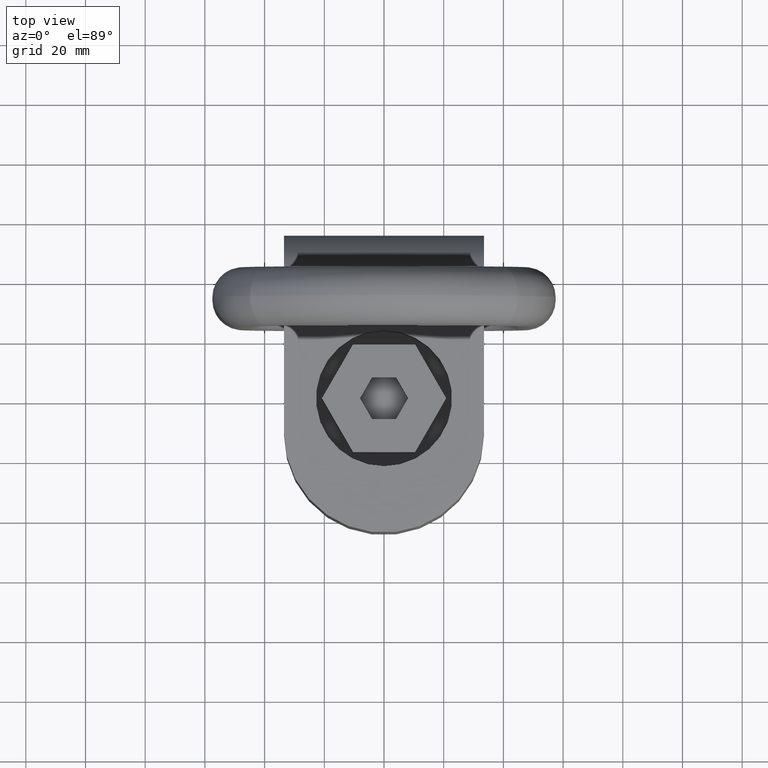
[diagram: clean part render]
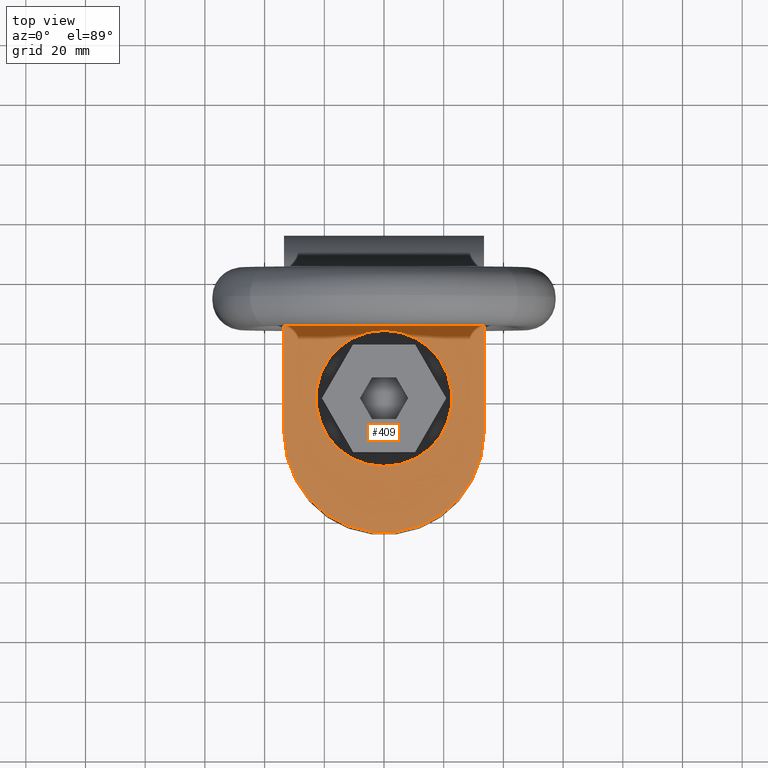
[diagram: same view with one face highlighted and labeled with its STEP entity id]
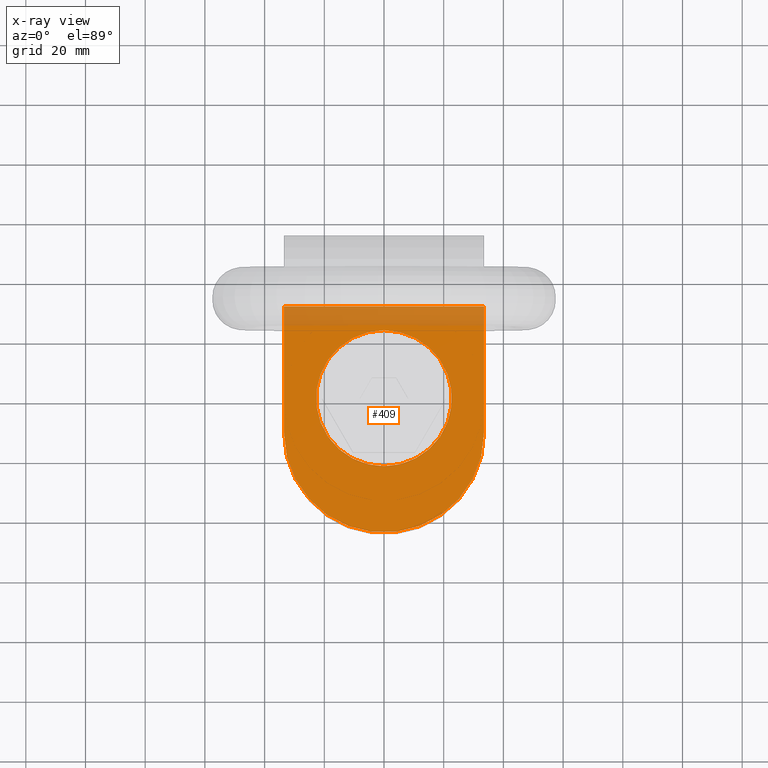
[diagram: x-ray of the same camera — body ghosted, the highlighted face saturated]
A machine part, top view. The second image highlights one B-rep face of the part: STEP entity #409.
The next image is the same camera in x-ray: the body ghosted, the highlighted face saturated — about 14% of this face is hidden behind the body in this view.
In plain terms, the highlighted planar face has unit normal (0, -0, -1).
Its self-contained STEP definition (entity closure, byte-faithful):
#239=PLANE('',#2492);
#409=ADVANCED_FACE('',(#577,#578),#239,.F.);
#577=FACE_BOUND('',#637,.T.);
#578=FACE_BOUND('',#638,.T.);
#637=EDGE_LOOP('',(#1216,#1217,#1218,#1219));
#638=EDGE_LOOP('',(#1220));
#801=LINE('',#3824,#931);
#802=LINE('',#3826,#932);
#803=LINE('',#3828,#933);
#931=VECTOR('',#2681,1.);
#932=VECTOR('',#2682,1.);
#933=VECTOR('',#2683,1.);
#1110=CIRCLE('',#2483,33.5);
#1114=CIRCLE('',#2491,22.7846096908265);
#1216=ORIENTED_EDGE('',*,*,#2037,.T.);
#1217=ORIENTED_EDGE('',*,*,#2050,.F.);
#1218=ORIENTED_EDGE('',*,*,#2051,.T.);
#1219=ORIENTED_EDGE('',*,*,#2052,.T.);
#1220=ORIENTED_EDGE('',*,*,#2053,.F.);
#1824=VERTEX_POINT('',#3683);
#1825=VERTEX_POINT('',#3685);
#1834=VERTEX_POINT('',#3825);
#1835=VERTEX_POINT('',#3827);
#1836=VERTEX_POINT('',#3830);
#2037=EDGE_CURVE('',#1825,#1824,#1110,.T.);
#2050=EDGE_CURVE('',#1834,#1824,#801,.T.);
#2051=EDGE_CURVE('',#1834,#1835,#802,.T.);
#2052=EDGE_CURVE('',#1835,#1825,#803,.T.);
#2053=EDGE_CURVE('',#1836,#1836,#1114,.T.);
#2483=AXIS2_PLACEMENT_3D('',#3684,#2658,#2659);
#2491=AXIS2_PLACEMENT_3D('',#3829,#2684,#2685);
#2492=AXIS2_PLACEMENT_3D('',#3831,#2686,#2687);
#2658=DIRECTION('',(0.,9.16025597875542E-17,1.));
#2659=DIRECTION('',(0.,1.,0.));
#2681=DIRECTION('',(0.,-1.,9.16025597875542E-17));
#2682=DIRECTION('',(-1.,0.,0.));
#2683=DIRECTION('',(0.,-1.,9.16025597875542E-17));
#2684=DIRECTION('',(0.,9.16025597875542E-17,1.));
#2685=DIRECTION('',(0.,1.,0.));
#2686=DIRECTION('',(0.,-9.16025597875542E-17,-1.));
#2687=DIRECTION('',(0.,1.,-9.0205620750794E-17));
#3683=CARTESIAN_POINT('',(33.5,-11.5,48.5));
#3684=CARTESIAN_POINT('',(0.,-11.5,48.5));
#3685=CARTESIAN_POINT('',(-33.5,-11.5,48.5));
#3824=CARTESIAN_POINT('',(33.5,30.75,48.5));
#3825=CARTESIAN_POINT('',(33.5,30.75,48.5));
#3826=CARTESIAN_POINT('',(33.5,30.75,48.5));
#3827=CARTESIAN_POINT('',(-33.5,30.75,48.5));
#3828=CARTESIAN_POINT('',(-33.5,30.75,48.5));
#3829=CARTESIAN_POINT('',(0.,3.77191155802137E-15,48.5));
#3830=CARTESIAN_POINT('',(0.,22.7846096908265,48.5));
#3831=CARTESIAN_POINT('',(33.5,30.75,48.5));